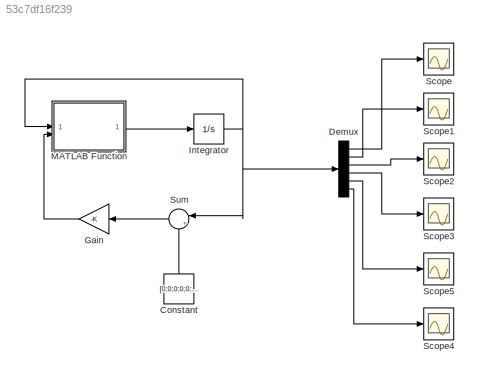
MODEL slx_53c7df16f239
KIND model
CONFIG AbsTol = auto
CONFIG EnableMultiTasking = off
CONFIG FixedStep = auto
CONFIG MaxStep = auto
CONFIG MinStep = auto
CONFIG RelTol = 1e-3
CONFIG SampleTimeConstraint = Unconstrained
CONFIG SolverName = VariableStepAuto
CONFIG StartTime = 0.0
CONFIG StopTime = 25
BLOCK [Constant] Constant
  NameLocation = right
  Value = [0;0;0;0;0;0]
BLOCK [Demux] Demux
  Outputs = 6
BLOCK [Gain] Gain
  Gain = -K
  Multiplication = Matrix(K*u)
  NameLocation = top
BLOCK [Integrator] Integrator
  InitialCondition = x0
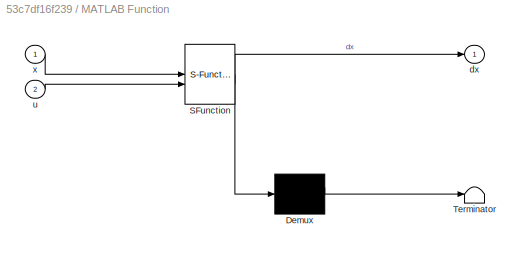
BLOCK [SubSystem] MATLAB Function
  ErrorFcn = Stateflow.Translate.translate
  PermitHierarchicalResolution = ExplicitOnly
  SFBlockType = MATLAB Function
  TreatAsAtomicUnit = on
BLOCK [Demux] MATLAB Function/ Demux 
  Outputs = 1
BLOCK [S-Function] MATLAB Function/ SFunction 
  EnableBusSupport = off
  FunctionName = sf_sfun
  PortCounts = [2 2]
  SFcnIsStateOwnerBlock = off
  SFunctionDeploymentMode = off
  Tag = Stateflow S-Function 2
BLOCK [Terminator] MATLAB Function/ Terminator 
BLOCK [Outport] MATLAB Function/dx
BLOCK [Inport] MATLAB Function/u
  Port = 2
BLOCK [Inport] MATLAB Function/x
BLOCK [Scope] Scope
  ActiveDisplayYMaximum = 0.033576872410200249
  ActiveDisplayYMinimum = -0.0037307636011333603
  Floating = off
  GraphicalSettings = {"Style":{"BackgroundColor":[0.12941176470588237,0.12941176470588237,0.12941176470588237],"AxesColor":[0.07058823529411765,0.07058823529411765,0.07058823529411765],"LabelsColor":[0.8509803921568627,0.8509803921568627,0.8509803921568627],"PreserveColors":false,"Visible":[true],"LineStyle":["-"],"LineWidth":[1.5],"BarWidth":[0.9],"LineColor":["auto"],"LineFaceAlpha":[1],"LineEdgeAlpha":[1],"Marker":...<+1902ch>  <repeated x6 — deduplicated; at blocks: Scope, Scope1, Scope2, Scope3, Scope4, Scope5>
  MultipleDisplayCache = [{"MaxYLimMag":0.033576872410200249,"MaxYLimReal":0.033576872410200249,"MinYLimMag":0,"MinYLimReal":-0.0037307636011333603,"PlotAsMagnitudePhase":false,"ShowGrid":true,"ShowLegend":false,"Title":"%<SignalLabel>","YLabel":""}]
  NumInputPorts = 1
  ScopeFrameLocation = window
  WasSavedAsWebScope = on
  WindowPosition = [488.000000,222.000000,560.000000,420.000000,]
BLOCK [Scope] Scope1
  ActiveDisplayYMaximum = 0.078043741921784829
  ActiveDisplayYMinimum = -0.024798769939145097
  DataLoggingVariableName = ScopeData1
  Floating = off
  MultipleDisplayCache = [{"MaxYLimMag":0.078043741921784829,"MaxYLimReal":0.078043741921784829,"MinYLimMag":0,"MinYLimReal":-0.024798769939145097,"PlotAsMagnitudePhase":false,"ShowGrid":true,"ShowLegend":false,"Title":"%<SignalLabel>","YLabel":""}]
  NumInputPorts = 1
  ScopeFrameLocation = window
  Visible = on
  WasSavedAsWebScope = on
  WindowPosition = [488.000000,222.000000,560.000000,420.000000,]
BLOCK [Scope] Scope2
  ActiveDisplayYMaximum = 0.05767160018346857
  ActiveDisplayYMinimum = -0.019044401651217138
  DataLoggingVariableName = ScopeData2
  Floating = off
  MultipleDisplayCache = [{"MaxYLimMag":0.05767160018346857,"MaxYLimReal":0.05767160018346857,"MinYLimMag":0,"MinYLimReal":-0.019044401651217138,"PlotAsMagnitudePhase":false,"ShowGrid":true,"ShowLegend":false,"Title":"%<SignalLabel>","YLabel":""}]
  NumInputPorts = 1
  ScopeFrameLocation = window
  Visible = on
  WasSavedAsWebScope = on
  WindowPosition = [488.000000,222.000000,560.000000,420.000000,]
BLOCK [Scope] Scope3
  ActiveDisplayYMaximum = 0.047449361590054681
  ActiveDisplayYMinimum = -0.29782597155367047
  DataLoggingVariableName = ScopeData3
  Floating = off
  MultipleDisplayCache = [{"MaxYLimMag":0.29782597155367047,"MaxYLimReal":0.047449361590054681,"MinYLimMag":0,"MinYLimReal":-0.29782597155367047,"PlotAsMagnitudePhase":false,"ShowGrid":true,"ShowLegend":false,"Title":"%<SignalLabel>","YLabel":""}]
  NumInputPorts = 1
  ScopeFrameLocation = window
  WasSavedAsWebScope = on
  WindowPosition = [488.000000,222.000000,560.000000,420.000000,]
BLOCK [Scope] Scope4
  ActiveDisplayYMaximum = 0.0451117732031662
  ActiveDisplayYMinimum = -0.02331625474498028
  DataLoggingVariableName = ScopeData4
  Floating = off
  MultipleDisplayCache = [{"MaxYLimMag":0.0451117732031662,"MaxYLimReal":0.0451117732031662,"MinYLimMag":0,"MinYLimReal":-0.02331625474498028,"PlotAsMagnitudePhase":false,"ShowGrid":true,"ShowLegend":false,"Title":"%<SignalLabel>","YLabel":""}]
  NumInputPorts = 1
  ScopeFrameLocation = window
  WasSavedAsWebScope = on
  WindowPosition = [488.000000,222.000000,560.000000,420.000000,]
BLOCK [Scope] Scope5
  ActiveDisplayYMaximum = 0.027614734445347996
  ActiveDisplayYMinimum = -0.0068679894033245488
  DataLoggingVariableName = ScopeData5
  Floating = off
  MultipleDisplayCache = [{"MaxYLimMag":0.027614734445347996,"MaxYLimReal":0.027614734445347996,"MinYLimMag":0,"MinYLimReal":-0.0068679894033245488,"PlotAsMagnitudePhase":false,"ShowGrid":true,"ShowLegend":false,"Title":"%<SignalLabel>","YLabel":""}]
  NumInputPorts = 1
  ScopeFrameLocation = window
  WasSavedAsWebScope = on
  WindowPosition = [488.000000,222.000000,560.000000,420.000000,]
BLOCK [Sum] Sum
  Inputs = |+-
  NameLocation = top
LINE Constant:1 -> Sum:2
LINE Demux:1 -> Scope:1
LINE Demux:2 -> Scope1:1
LINE Demux:3 -> Scope2:1
LINE Demux:4 -> Scope3:1
LINE Demux:5 -> Scope5:1
LINE Demux:6 -> Scope4:1
LINE Gain:1 -> MATLAB Function:2
NET Integrator:1 -> Demux:1, MATLAB Function:1, Sum:1
LINE MATLAB Function:1 -> Integrator:1
LINE Sum:1 -> Gain:1
note: NET lines group one-source signal fan-out (src -> all destinations, sorted); 1:1 wires keep LINE
CHART MATLAB Function states=1 transitions=1
  STATE_LABEL 'eML_blk_kernel()'
  STATE_LABEL 'SCRIPT:\nfunction dx= invp(x, u)\n    M_W = 3.4;   % kg\n    R   = 0.268;  % m\n    I_W = 0.5*M_W*R^2;% kg*m^2\n\n    M_R = 12.1;   % kg\n    d   = 0.21931;   % m\n    h   = 0.35431;  % m\n    I_yy_CoM = (1/12) * M_R * (h^2 + d^2);\n    I_R = I_yy_CoM + M_R * (h/2)^2;\n\n    m_b = 0.00274;   % kg\n    r   = 0.04005;  % m\n    I_b = 2/5 * m_b * r^2;\n\n    g   = 9.81;  % m/s^2\n    dx=[0;0;0;0;0;0];\n    x1=x(1);\n  ...<+3608ch>'
CHART  states=0 transitions=0
